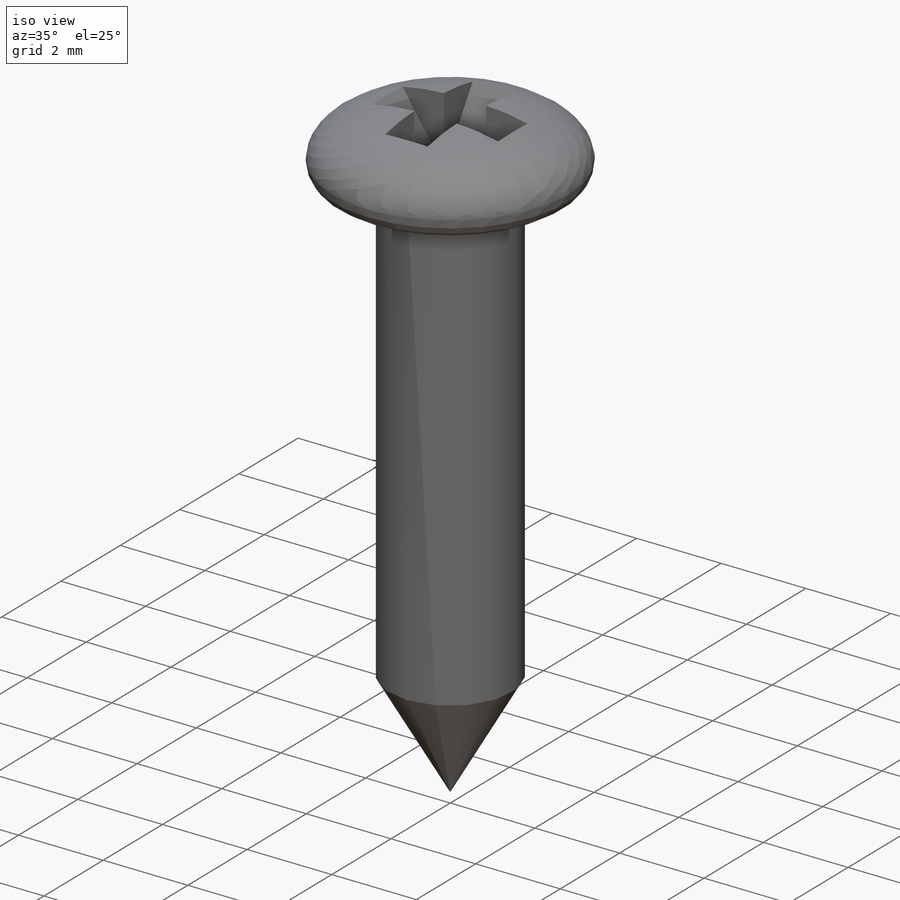
[diagram: iso view]
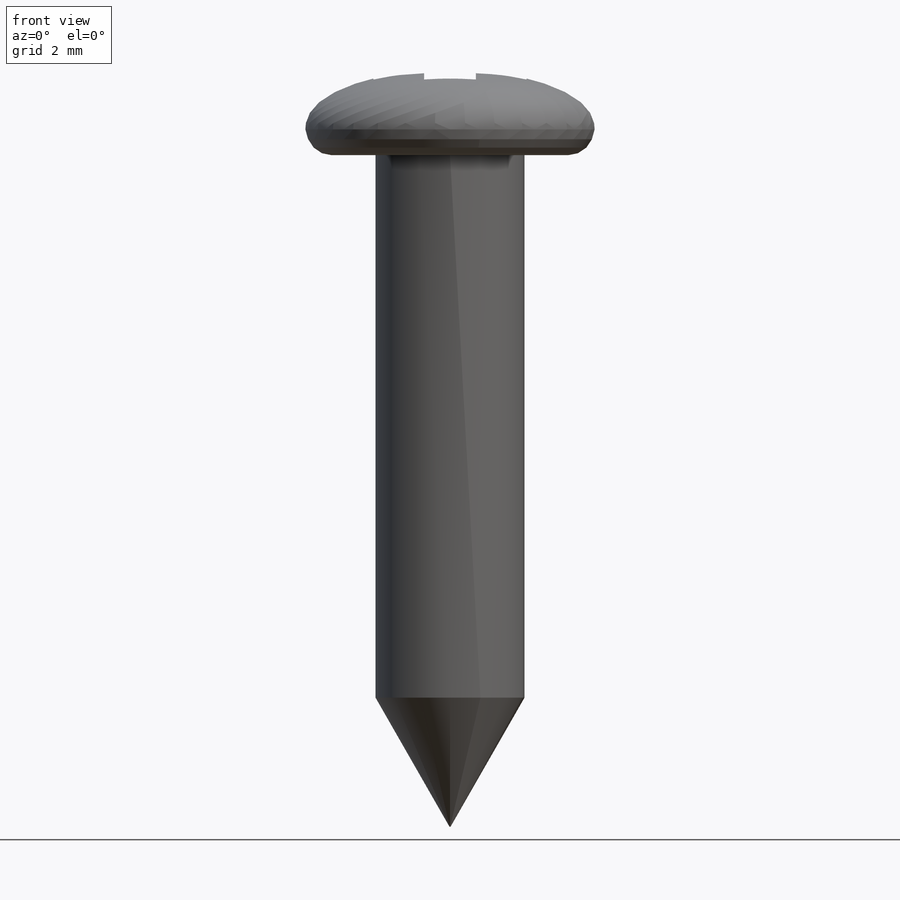
[diagram: front view]
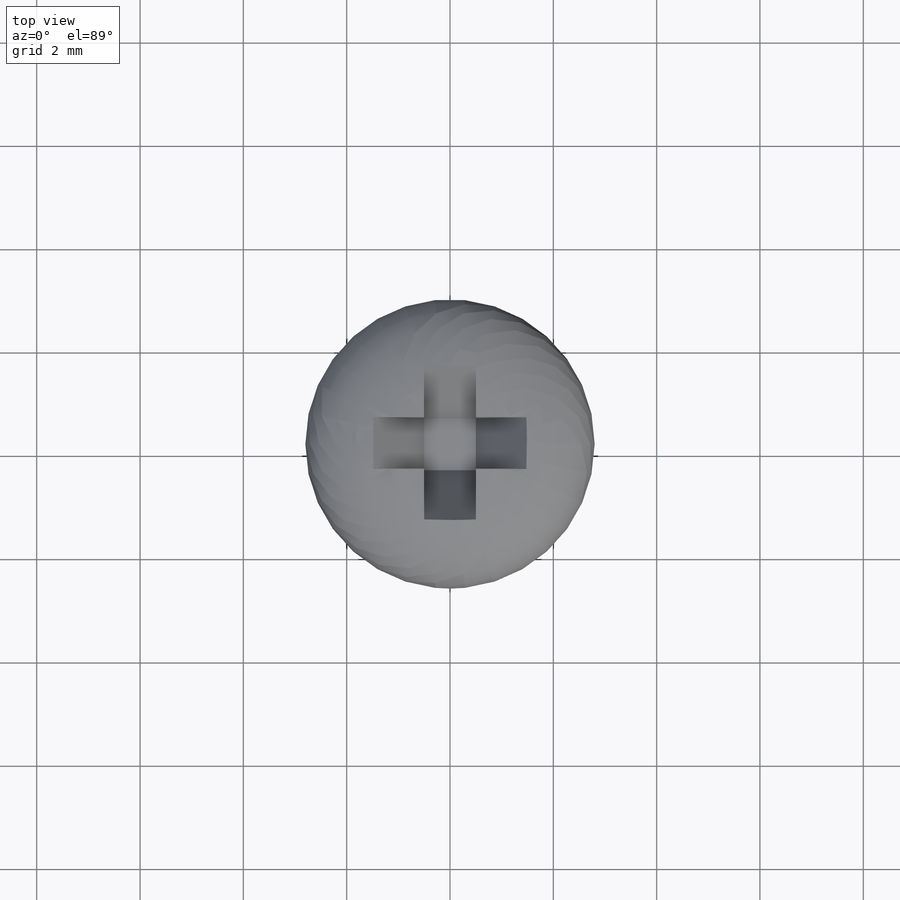
[diagram: top view]
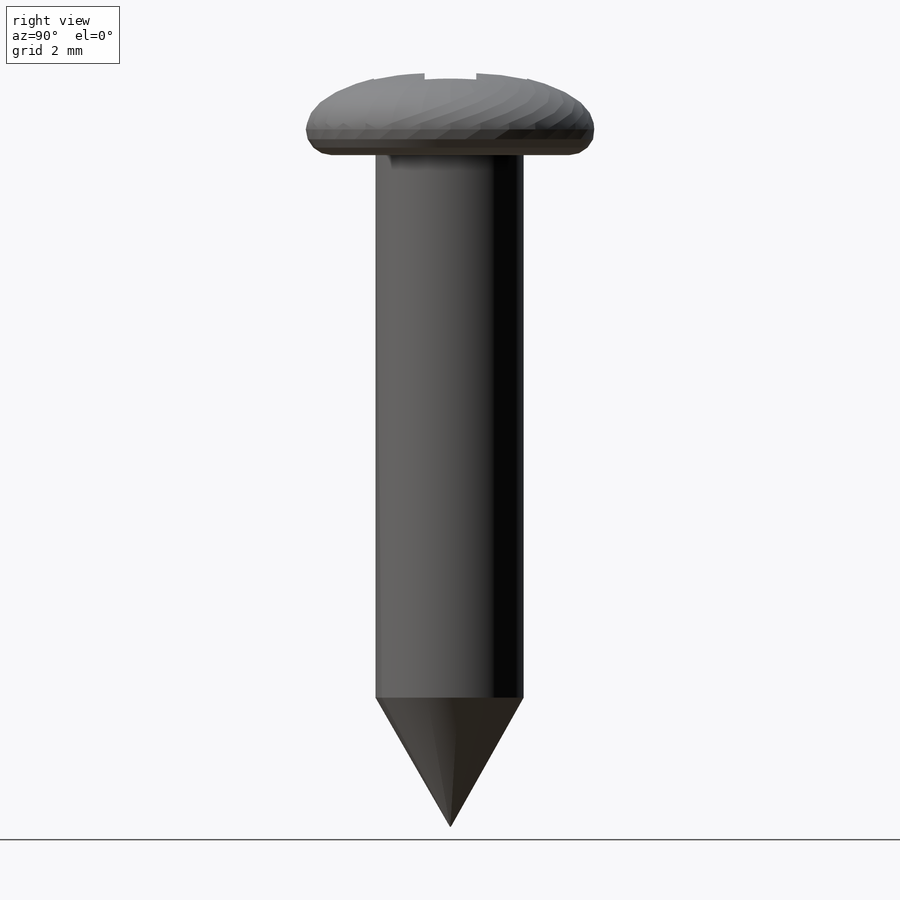
[diagram: right view]
SOLIDWORKS PART (.sldprt)
format: sldprt  version: not decoded by parser v0  size: 188,928 bytes
history: native  units: mm
features: plane x4, sketch x3, material x1, extrude x1, revolve x1, cut_extrude x1, pattern_circular x1, chamfer x1 (+8 scaffold rows collapsed)
feature tree (21):
  scaffold x8  (default folders/planes/origin — collapsed)
  material  "Matériau <non spécifié>"
  plane  "Plan de face"
  plane  "Plan de dessus"
  plane  "Plan de droite"
  plane  "Plan3"  Offset=6.4mm
  sketch  "Esquisse1"  dims[D1=~2.611009mm]
  extrude  "Extrusion1"  Depth=13mm
  sketch  "Esquisse2"  dims[D1=0.5mm D2=1.2mm]
  revolve  "Révolution1"  Angle=360deg
  sketch  "Esquisse3"
  cut_extrude  "Enlèv. mat.-Extru.1"  Depth=1mm
  pattern_circular  "Répétition circulaire1"  Count=2 Angle=90deg
  chamfer  "Chanfrein1"  Distance=1.44mm
decode coverage: 7 of 8 modeling features carry decoded parameters
note: ~ marks probable driven/reference dimensions
note: suppression state not decoded; provenance and decode notes live in map.json
